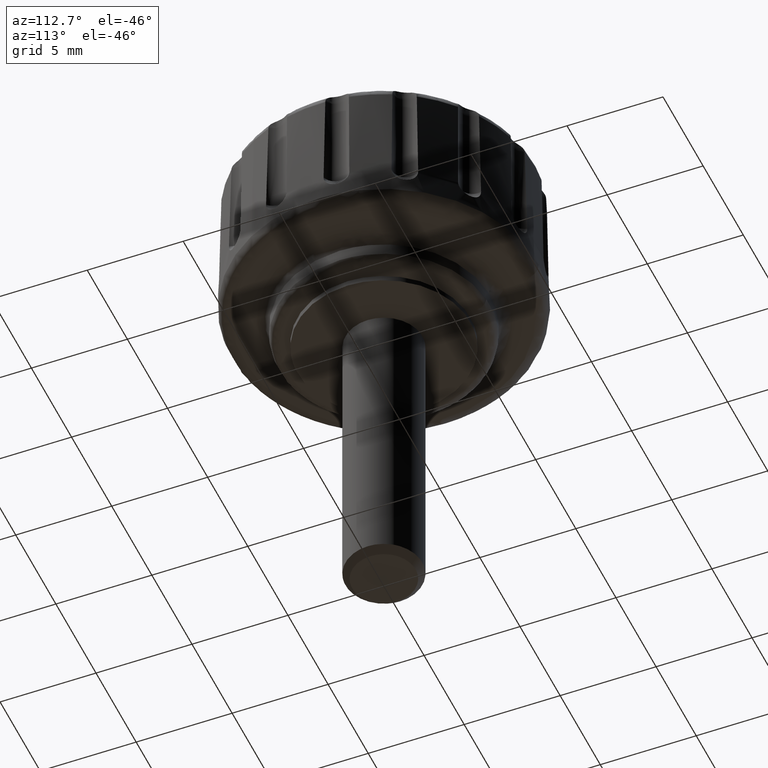
[diagram: clean part render]
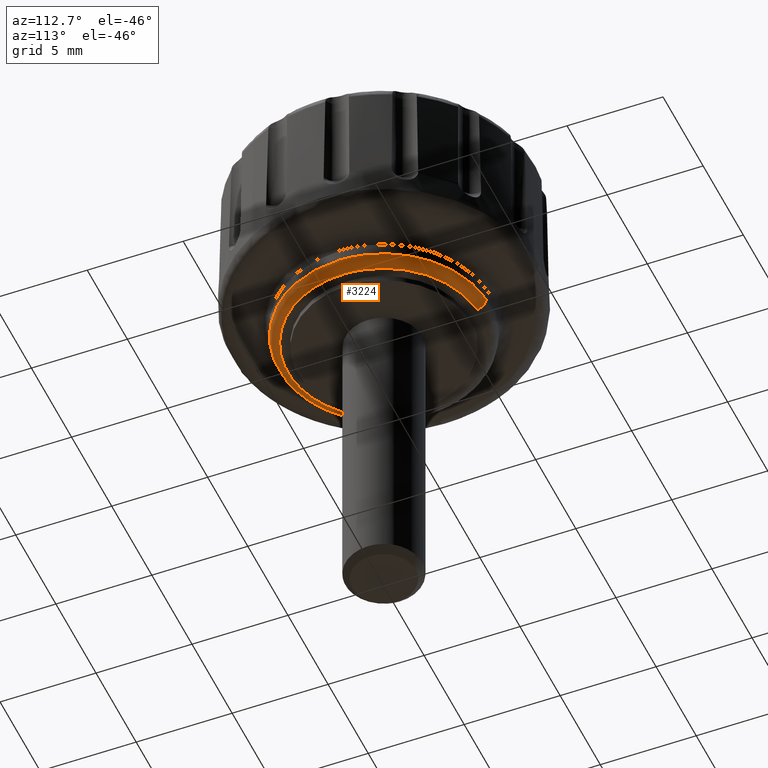
[diagram: same view with one face highlighted and labeled with its STEP entity id]
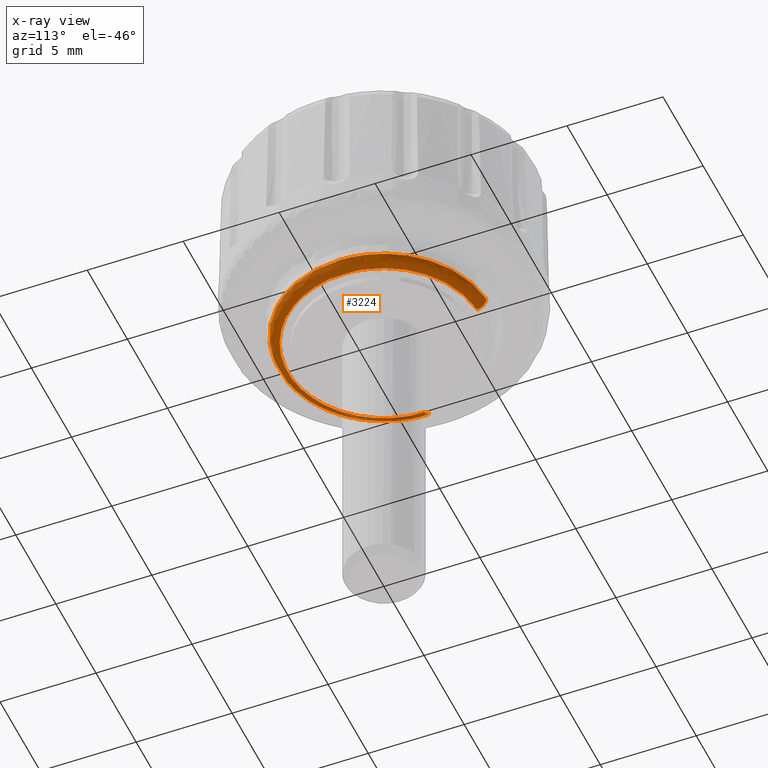
[diagram: x-ray of the same camera — body ghosted, the highlighted face saturated]
A machine part, auxiliary view. The second image highlights one B-rep face of the part: STEP entity #3224.
The next image is the same camera in x-ray: the body ghosted, the highlighted face saturated — about 6% of this face is hidden behind the body in this view.
In plain terms, the highlighted face is a freeform B-spline surface patch.
Its self-contained STEP definition (entity closure, byte-faithful):
#1249=CARTESIAN_POINT('',(5.512748662487790,0.0,0.786914525846069));
#1250=VERTEX_POINT('',#1249);
#1251=CARTESIAN_POINT('',(3.816212526649391,-3.978280977598345,0.786218860071127));
#1252=VERTEX_POINT('',#1251);
#1253=CARTESIAN_POINT('',(5.512748662487790,0.0,0.786914525846069));
#1254=CARTESIAN_POINT('',(5.512707262178933,-0.729892682607648,0.785333557025935));
#1255=CARTESIAN_POINT('',(5.367852507918578,-1.452144846739583,0.784982174044345));
#1256=CARTESIAN_POINT('',(5.086443105772388,-2.125608801014339,0.785973134721521));
#1257=CARTESIAN_POINT('',(4.805278012376520,-2.798488079952020,0.786963235084995));
#1258=CARTESIAN_POINT('',(4.393159064514106,-3.409306830098497,0.785042946046720));
#1259=CARTESIAN_POINT('',(3.873526041068701,-3.922493394250014,0.786110076637485));
#1260=CARTESIAN_POINT('',(3.854543832588056,-3.941240113397306,0.786149058946992));
#1261=CARTESIAN_POINT('',(3.835438718200484,-3.959836262499629,0.786185281745407));
#1262=CARTESIAN_POINT('',(3.816212526649391,-3.978280977598345,0.786218860071127));
#1263=B_SPLINE_CURVE_WITH_KNOTS('',3,(#1253,#1254,#1255,#1256,#1257,#1258,#1259,#1260,#1261,#1262),.UNSPECIFIED.,.F.,.U.,(4,3,3,4),(0.0,2.189683187976120,4.377465377765343,4.457385120666714),.UNSPECIFIED.);
#1264=EDGE_CURVE('',#1250,#1252,#1263,.T.);
#1266=CARTESIAN_POINT('',(0.384421889351672,5.499328834182221,0.786914524875779));
#1267=VERTEX_POINT('',#1266);
#1268=CARTESIAN_POINT('',(0.384421889351672,5.499328834182221,0.786914524875779));
#1269=CARTESIAN_POINT('',(5.512748662487790,5.140841257489637,0.786914525846069));
#1270=CARTESIAN_POINT('',(5.512748662487790,0.0,0.786914525846069));
#1278=(BOUNDED_CURVE()B_SPLINE_CURVE(2,(#1268,#1269,#1270),.UNSPECIFIED.,.F.,.U.)B_SPLINE_CURVE_WITH_KNOTS((3,3),(0.262166313464866,0.500000000000000),.UNSPECIFIED.)CURVE()GEOMETRIC_REPRESENTATION_ITEM()RATIONAL_B_SPLINE_CURVE((0.972879876387067,0.721360504033819,1.0))REPRESENTATION_ITEM(''));
#1279=EDGE_CURVE('',#1267,#1250,#1278,.T.);
#1281=CARTESIAN_POINT('',(-5.512530897101097,0.034636708100191,0.786909423287084));
#1282=VERTEX_POINT('',#1281);
#1298=CARTESIAN_POINT('',(0.432524292890312,-5.495728411869813,0.785299919006811));
#1299=VERTEX_POINT('',#1298);
#1300=CARTESIAN_POINT('',(0.432524292890312,-5.495728411869813,0.785299919006811));
#1301=CARTESIAN_POINT('',(0.266349345226151,-5.508797974674109,0.785551293820231));
#1302=CARTESIAN_POINT('',(0.098930063302916,-5.514384134886242,0.785911860181314));
#1303=CARTESIAN_POINT('',(-0.069274448613762,-5.512284669404438,0.786409522630960));
#1304=CARTESIAN_POINT('',(-0.790394292037416,-5.503187255428315,0.785190572832619));
#1305=CARTESIAN_POINT('',(-1.502270755429796,-5.352847493023234,0.785025354645656));
#1306=CARTESIAN_POINT('',(-2.165487838061620,-5.069582068425819,0.785965982479458));
#1307=CARTESIAN_POINT('',(-2.828114264446155,-4.786568917928486,0.786905772597042));
#1308=CARTESIAN_POINT('',(-3.429217347803218,-4.376174677536368,0.785087941187902));
#1309=CARTESIAN_POINT('',(-3.934631664119615,-3.861189418797352,0.786125775572364));
#1310=CARTESIAN_POINT('',(-4.951472893040219,-2.825092445548266,0.788213790804310));
#1311=CARTESIAN_POINT('',(-5.521591449833382,-1.426423361541701,0.782333793603524));
#1312=CARTESIAN_POINT('',(-5.512530897101097,0.034636708100191,0.786909423287084));
#1313=B_SPLINE_CURVE_WITH_KNOTS('',3,(#1300,#1301,#1302,#1303,#1304,#1305,#1306,#1307,#1308,#1309,#1310,#1311,#1312),.UNSPECIFIED.,.F.,.U.,(4,3,3,3,4),(8.278585819341332,8.779180984568928,10.925310396491410,13.069528481372039,17.383473065282271),.UNSPECIFIED.);
#1314=EDGE_CURVE('',#1299,#1282,#1313,.T.);
#1410=CARTESIAN_POINT('',(3.816212526649391,-3.978280977598345,0.786218860071127));
#1411=CARTESIAN_POINT('',(2.896952595399291,-4.860174506373521,0.787824357716738));
#1412=CARTESIAN_POINT('',(1.700990576878052,-5.395971147593342,0.783380977229926));
#1413=CARTESIAN_POINT('',(0.432524292890312,-5.495728411869813,0.785299919006811));
#1414=B_SPLINE_CURVE_WITH_KNOTS('',3,(#1410,#1411,#1412,#1413),.UNSPECIFIED.,.F.,.U.,(4,4),(4.457385120666713,8.278585819341332),.UNSPECIFIED.);
#1415=EDGE_CURVE('',#1252,#1299,#1414,.T.);
#3043=CARTESIAN_POINT('',(0.384402288679992,5.499048437716990,0.821268313604704));
#3044=CARTESIAN_POINT('',(5.577447597019020,5.136036814096306,0.821268313604704));
#3045=CARTESIAN_POINT('',(5.512032340488168,-0.069269887488022,0.821268313604704));
#3046=CARTESIAN_POINT('',(5.442762453000143,-5.581302227976187,0.821268313604704));
#3047=CARTESIAN_POINT('',(-0.069269887488022,-5.512032340488168,0.821268313604704));
#3048=CARTESIAN_POINT('',(-5.581302227976186,-5.442762453000144,0.821268313604704));
#3049=CARTESIAN_POINT('',(-5.512032340488168,0.069269887488021,0.821268313604704));
#3050=CARTESIAN_POINT('',(0.386060046720480,5.522763415569910,0.262815741003018));
#3051=CARTESIAN_POINT('',(5.601500675972084,5.158186282441171,0.262815741003018));
#3052=CARTESIAN_POINT('',(5.535803312204419,-0.069568618053184,0.262815741003018));
#3053=CARTESIAN_POINT('',(5.466234694151230,-5.605371930257599,0.262815741003018));
#3054=CARTESIAN_POINT('',(-0.069568618053184,-5.535803312204419,0.262815741003018));
#3055=CARTESIAN_POINT('',(-5.605371930257599,-5.466234694151230,0.262815741003018));
#3056=CARTESIAN_POINT('',(-5.535803312204419,0.069568618053184,0.262815741003018));
#3057=CARTESIAN_POINT('',(0.347173992104613,4.966480833021669,0.301182227571342));
#3058=CARTESIAN_POINT('',(5.037287250969899,4.638625879333592,0.301182227571342));
#3059=CARTESIAN_POINT('',(4.978207280784631,-0.062561290814463,0.301182227571342));
#3060=CARTESIAN_POINT('',(4.915645989970166,-5.040768571599091,0.301182227571342));
#3061=CARTESIAN_POINT('',(-0.062561290814462,-4.978207280784631,0.301182227571342));
#3062=CARTESIAN_POINT('',(-5.040768571599091,-4.915645989970166,0.301182227571342));
#3063=CARTESIAN_POINT('',(-4.978207280784631,0.062561290814462,0.301182227571342));
#3071=(BOUNDED_SURFACE()B_SPLINE_SURFACE(2,2,((#3043,#3050,#3057),(#3044,#3051,#3058),(#3045,#3052,#3059),(#3046,#3053,#3060),(#3047,#3054,#3061),(#3048,#3055,#3062),(#3049,#3056,#3063)),.UNSPECIFIED.,.F.,.F.,.U.)B_SPLINE_SURFACE_WITH_KNOTS((3,2,2,3),(3,3),(0.0,8.768021124499002,17.901376462518801,27.034731800538591),(0.0,0.894364607943259),.UNSPECIFIED.)GEOMETRIC_REPRESENTATION_ITEM()RATIONAL_B_SPLINE_SURFACE(((0.895549162225522,0.597203372067661,0.895956564990822),(0.658554553887211,0.439161820323288,0.658854143186907),(0.916157389037550,0.610946115697606,0.916574166886815),(0.647821102422613,0.432004141349359,0.648115808866077),(0.916157389037550,0.610946115697606,0.916574166886815),(0.647821102422613,0.432004141349359,0.648115808866077),(0.916157389037550,0.610946115697606,0.916574166886815)))REPRESENTATION_ITEM('')SURFACE());
#3072=CARTESIAN_POINT('',(0.349567217099414,5.000716997999804,0.300003000000015));
#3073=VERTEX_POINT('',#3072);
#3074=CARTESIAN_POINT('',(5.012919999999999,0.0,0.300003000000004));
#3075=VERTEX_POINT('',#3074);
#3076=CARTESIAN_POINT('',(0.349567217099414,5.000716997999804,0.300003000000015));
#3077=CARTESIAN_POINT('',(5.012919999999999,4.674732612401294,0.300003000000004));
#3078=CARTESIAN_POINT('',(5.012919999999999,0.0,0.300003000000004));
#3086=(BOUNDED_CURVE()B_SPLINE_CURVE(2,(#3076,#3077,#3078),.UNSPECIFIED.,.F.,.U.)B_SPLINE_CURVE_WITH_KNOTS((3,3),(0.262166313464810,0.500000000000000),.UNSPECIFIED.)CURVE()GEOMETRIC_REPRESENTATION_ITEM()RATIONAL_B_SPLINE_CURVE((0.972879876387184,0.721360504033754,1.0))REPRESENTATION_ITEM(''));
#3087=EDGE_CURVE('',#3073,#3075,#3086,.T.);
#3088=ORIENTED_EDGE('',*,*,#3087,.F.);
#3089=CARTESIAN_POINT('',(0.384421889351671,5.499328834182215,0.786914524875778));
#3090=CARTESIAN_POINT('',(0.383532774641746,5.486609646496433,0.300003078407448));
#3091=CARTESIAN_POINT('',(0.349567217099414,5.000716997999804,0.300003000000015));
#3099=(BOUNDED_CURVE()B_SPLINE_CURVE(2,(#3089,#3090,#3091),.UNSPECIFIED.,.F.,.U.)B_SPLINE_CURVE_WITH_KNOTS((3,3),(-1.730267222669182,-0.268636184484267),.UNSPECIFIED.)CURVE()GEOMETRIC_REPRESENTATION_ITEM()RATIONAL_B_SPLINE_CURVE((0.869682888467702,0.623088199854952,0.870053183016240))REPRESENTATION_ITEM(''));
#3100=EDGE_CURVE('',#1267,#3073,#3099,.T.);
#3101=ORIENTED_EDGE('',*,*,#3100,.F.);
#3102=ORIENTED_EDGE('',*,*,#1279,.T.);
#3103=ORIENTED_EDGE('',*,*,#1264,.T.);
#3104=ORIENTED_EDGE('',*,*,#1415,.T.);
#3105=ORIENTED_EDGE('',*,*,#1314,.T.);
#3106=CARTESIAN_POINT('',(-5.012917982175576,0.031498737977902,0.300003076751430));
#3107=VERTEX_POINT('',#3106);
#3108=CARTESIAN_POINT('',(-5.512530897101097,0.034636708100191,0.786909423287084));
#3109=CARTESIAN_POINT('',(-5.499860380398856,0.036047818024192,0.300003937687814));
#3110=CARTESIAN_POINT('',(-5.012917982175576,0.031498737977902,0.300003076751430));
#3118=(BOUNDED_CURVE()B_SPLINE_CURVE(2,(#3108,#3109,#3110),.UNSPECIFIED.,.F.,.U.)B_SPLINE_CURVE_WITH_KNOTS((3,3),(-1.730244594685059,-0.268631820707516),.UNSPECIFIED.)CURVE()GEOMETRIC_REPRESENTATION_ITEM()RATIONAL_B_SPLINE_CURVE((0.889688074131002,0.637429758978865,0.890076209232669))REPRESENTATION_ITEM(''));
#3119=EDGE_CURVE('',#1282,#3107,#3118,.T.);
#3120=ORIENTED_EDGE('',*,*,#3119,.T.);
#3121=CARTESIAN_POINT('',(5.012919999999999,0.0,0.300003000000004));
#3122=CARTESIAN_POINT('',(5.013617490653953,-0.025680701277561,0.300003763328562));
#3123=CARTESIAN_POINT('',(5.013982538491242,-0.066787300128549,0.300004599614071));
#3124=CARTESIAN_POINT('',(5.012937151432968,-0.113020862966680,0.300004791815099));
#3125=CARTESIAN_POINT('',(5.011636614931664,-0.138677768877814,0.300004530085832));
#3126=CARTESIAN_POINT('',(5.010685681486342,-0.159207224024095,0.300004341515208));
#3127=CARTESIAN_POINT('',(5.008375028150438,-0.205389326826730,0.300004024350877));
#3128=CARTESIAN_POINT('',(5.006574496250987,-0.267023354169290,0.300003511538330));
#3129=CARTESIAN_POINT('',(5.000813349558826,-0.369620945300961,0.300003504213587));
#3130=CARTESIAN_POINT('',(4.994157694594796,-0.451567882555042,0.300004653632173));
#3131=CARTESIAN_POINT('',(4.981688172565564,-0.574251794247169,0.300004690352413));
#3132=CARTESIAN_POINT('',(4.962918269065151,-0.716871460533322,0.300002415826369));
#3133=CARTESIAN_POINT('',(4.931256712753975,-0.920013416869679,0.300005838307412));
#3134=CARTESIAN_POINT('',(4.885408644275613,-1.130915306825727,0.300002338236404));
#3135=CARTESIAN_POINT('',(4.833915454080420,-1.340527207922075,0.300005845073700));
#3136=CARTESIAN_POINT('',(4.773082399417536,-1.536893125747454,0.300002394529178));
#3137=CARTESIAN_POINT('',(4.707652049074500,-1.731743092528246,0.300005701448311));
#3138=CARTESIAN_POINT('',(4.654313793282897,-1.865409311080458,0.300003478607594));
#3139=CARTESIAN_POINT('',(4.598794190925545,-1.998107150402763,0.300003564209910));
#3140=CARTESIAN_POINT('',(4.541337794830466,-2.130050764073357,0.300005690243248));
#3141=CARTESIAN_POINT('',(4.448939888962830,-2.313666967769083,0.300002325535070));
#3142=CARTESIAN_POINT('',(4.356558428991406,-2.485701104132925,0.300005560207515));
#3143=CARTESIAN_POINT('',(4.282027520066170,-2.608799943000717,0.300003699632541));
#3144=CARTESIAN_POINT('',(4.210960879845541,-2.721895452264076,0.300003288160670));
#3145=CARTESIAN_POINT('',(4.126945897512272,-2.851170051937782,0.300005687217648));
#3146=CARTESIAN_POINT('',(4.041957391186814,-2.967305613849078,0.300003465310242));
#3147=CARTESIAN_POINT('',(3.955106784885470,-3.081968447121187,0.300003575879439));
#3148=CARTESIAN_POINT('',(3.866550508496267,-3.195412471085235,0.300005692215693));
#3149=CARTESIAN_POINT('',(3.731279381740668,-3.350177350220329,0.300002328068380));
#3150=CARTESIAN_POINT('',(3.591931410329697,-3.501287318019899,0.300005714134143));
#3151=CARTESIAN_POINT('',(3.488622072912629,-3.601476448872945,0.300003519530257));
#3152=CARTESIAN_POINT('',(3.383983119642548,-3.700172035223424,0.300003523341198));
#3153=CARTESIAN_POINT('',(3.277604791778995,-3.797120702979430,0.300005681527702));
#3154=CARTESIAN_POINT('',(3.118271068543141,-3.926943169684796,0.300002423571823));
#3155=CARTESIAN_POINT('',(2.955858467844539,-4.052977699947286,0.300005838957449));
#3156=CARTESIAN_POINT('',(2.777772515154152,-4.174940210288208,0.300002330693514));
#3157=CARTESIAN_POINT('',(2.605149312248806,-4.286525035687228,0.300005737510181));
#3158=CARTESIAN_POINT('',(2.426508664868843,-4.388252020345203,0.300002463195532));
#3159=CARTESIAN_POINT('',(2.290748154819639,-4.461248066410406,0.300004839141711));
#3160=CARTESIAN_POINT('',(2.161613127744269,-4.524694613861596,0.300004465839412));
#3161=CARTESIAN_POINT('',(2.030862707246137,-4.584661312758476,0.300002608237818));
#3162=CARTESIAN_POINT('',(1.851571886432887,-4.662128948392908,0.300005846196782));
#3163=CARTESIAN_POINT('',(1.658342990247351,-4.732290912179402,0.300002460321791));
#3164=CARTESIAN_POINT('',(1.521972046704551,-4.778089816321577,0.300004602413475));
#3165=CARTESIAN_POINT('',(1.384329089375584,-4.819966613611316,0.300004687046989));
#3166=CARTESIAN_POINT('',(1.245393040244100,-4.857333342694968,0.300002463511182));
#3167=CARTESIAN_POINT('',(1.045648385680664,-4.905903664287563,0.300005765758816));
#3168=CARTESIAN_POINT('',(0.843501387010679,-4.943134017058936,0.300002331132413));
#3169=CARTESIAN_POINT('',(0.630256560756393,-4.976591989854459,0.300005790821201));
#3170=CARTESIAN_POINT('',(0.415409776681867,-4.997317813770295,0.300002387513706));
#3171=CARTESIAN_POINT('',(0.220615995821414,-5.011002838578372,0.300005232656362));
#3172=CARTESIAN_POINT('',(0.076722064959110,-5.012903795026133,0.300003182834924));
#3173=CARTESIAN_POINT('',(-0.056841889582900,-5.013001457305838,0.300002801828091));
#3174=CARTESIAN_POINT('',(-0.211032438806521,-5.011544859938651,0.300005036642662));
#3175=CARTESIAN_POINT('',(-0.416093322961546,-4.997285465143505,0.300002459533170));
#3176=CARTESIAN_POINT('',(-0.630927791887125,-4.976495562046906,0.300005754695659));
#3177=CARTESIAN_POINT('',(-0.823874006732779,-4.946194498210988,0.300002647635470));
#3178=CARTESIAN_POINT('',(-0.965443887549826,-4.920702040834968,0.300004453335327));
#3179=CARTESIAN_POINT('',(-1.106319661368932,-4.891456615975110,0.300004845044601));
#3180=CARTESIAN_POINT('',(-1.255988946047916,-4.854602073261540,0.300002457184078));
#3181=CARTESIAN_POINT('',(-1.454351141107218,-4.800623475683763,0.300005742042675));
#3182=CARTESIAN_POINT('',(-1.649339417010999,-4.735590270471694,0.300002328668440));
#3183=CARTESIAN_POINT('',(-1.852206572674181,-4.661872460240617,0.300005838310981));
#3184=CARTESIAN_POINT('',(-2.040918498590394,-4.580311522793515,0.300002444492468));
#3185=CARTESIAN_POINT('',(-2.171553802525345,-4.520078066013369,0.300004644397669));
#3186=CARTESIAN_POINT('',(-2.300398616575235,-4.456050838542547,0.300004643426849));
#3187=CARTESIAN_POINT('',(-2.427108696600228,-4.387933438685166,0.300002486238622));
#3188=CARTESIAN_POINT('',(-2.605731452564077,-4.286167833015382,0.300005731760976));
#3189=CARTESIAN_POINT('',(-2.778338703926061,-4.174562466417623,0.300002329409904));
#3190=CARTESIAN_POINT('',(-2.947931025808793,-4.058395728331068,0.300005690728853));
#3191=CARTESIAN_POINT('',(-3.061965510140936,-3.970615116690869,0.300003579839799));
#3192=CARTESIAN_POINT('',(-3.174655518023547,-3.881218574459419,0.300003460266943));
#3193=CARTESIAN_POINT('',(-3.285925077838176,-3.789941049976090,0.300005708159042));
#3194=CARTESIAN_POINT('',(-3.437313816448561,-3.650919928236438,0.300002391672079));
#3195=CARTESIAN_POINT('',(-3.585425731956689,-3.508344365207908,0.300005846518341));
#3196=CARTESIAN_POINT('',(-3.731733816944594,-3.349677807453755,0.300002337126150));
#3197=CARTESIAN_POINT('',(-3.873747252883139,-3.187131081526154,0.300005838055645));
#3198=CARTESIAN_POINT('',(-3.999567905270303,-3.024550857692074,0.300002414137928));
#3199=CARTESIAN_POINT('',(-4.121475141522122,-2.859084948965126,0.300005702830382));
#3200=CARTESIAN_POINT('',(-4.200276340727601,-2.738642512803571,0.300003497095806));
#3201=CARTESIAN_POINT('',(-4.276994062064577,-2.616970053742843,0.300003538335639));
#3202=CARTESIAN_POINT('',(-4.352025429407729,-2.494164592612075,0.300005713595216));
#3203=CARTESIAN_POINT('',(-4.449259804620399,-2.313063193906767,0.300002336343318));
#3204=CARTESIAN_POINT('',(-4.546238905239138,-2.120243706443842,0.300005838246738));
#3205=CARTESIAN_POINT('',(-4.627540094858479,-1.931411940565230,0.300002419677696));
#3206=CARTESIAN_POINT('',(-4.681265816534897,-1.797971378884542,0.300004684236021));
#3207=CARTESIAN_POINT('',(-4.727500760224365,-1.672625367858870,0.300004682104825));
#3208=CARTESIAN_POINT('',(-4.773300482536619,-1.536257844418392,0.300002421081244));
#3209=CARTESIAN_POINT('',(-4.834095055801665,-1.339869099461742,0.300005838426091));
#3210=CARTESIAN_POINT('',(-4.885563307716256,-1.130249620779066,0.300002339998916));
#3211=CARTESIAN_POINT('',(-4.931382154088850,-0.919345264022626,0.300005839994831));
#3212=CARTESIAN_POINT('',(-4.963012121675193,-0.716194817059686,0.300002407441003));
#3213=CARTESIAN_POINT('',(-4.981770890866120,-0.573576261117462,0.300004701459589));
#3214=CARTESIAN_POINT('',(-4.996295995239688,-0.430438343834491,0.300004635707343));
#3215=CARTESIAN_POINT('',(-5.005402971255576,-0.297142867322706,0.300002444619338));
#3216=CARTESIAN_POINT('',(-5.014109034761745,-0.122670660143337,0.300005584608609));
#3217=CARTESIAN_POINT('',(-5.013949856716907,-0.019860546768591,0.300004022331860));
#3218=CARTESIAN_POINT('',(-5.012917982175576,0.031498737977902,0.300003076751430));
#3219=B_SPLINE_CURVE_WITH_KNOTS('',3,(#3121,#3122,#3123,#3124,#3125,#3126,#3127,#3128,#3129,#3130,#3131,#3132,#3133,#3134,#3135,#3136,#3137,#3138,#3139,#3140,#3141,#3142,#3143,#3144,#3145,#3146,#3147,#3148,#3149,#3150,#3151,#3152,#3153,#3154,#3155,#3156,#3157,#3158,#3159,#3160,#3161,#3162,#3163,#3164,#3165,#3166,#3167,#3168,#3169,#3170,#3171,#3172,#3173,#3174,#3175,#3176,#3177,#3178,#3179,#3180,#3181,#3182,#3183,#3184,#3185,#3186,#3187,#3188,#3189,#3190,#3191,#3192,#3193,#3194,#3195,#3196,#3197,#3198,#3199,#3200,#3201,#3202,#3203,#3204,#3205,#3206,#3207,#3208,#3209,#3210,#3211,#3212,#3213,#3214,#3215,#3216,#3217,#3218),.UNSPECIFIED.,.F.,.U.,(4,1,1,1,1,1,1,1,1,1,1,1,1,1,1,1,1,1,1,1,1,1,1,1,1,1,1,1,1,1,1,1,1,1,1,1,1,1,1,1,1,1,1,1,1,1,1,1,1,1,1,1,1,1,1,1,1,1,1,1,1,1,1,1,1,1,1,1,1,1,1,1,1,1,1,1,1,1,1,1,1,1,1,1,1,1,1,1,1,1,1,1,1,1,1,4),(-0.000040084229960,0.077028728453056,0.123266833312021,0.138680604326508,0.154094375340961,0.184921917369881,0.277401045255198,0.339054263604913,0.493190127482199,0.524014235935367,0.708976812843146,0.924763685682484,1.140550475936252,1.356337264027779,1.572124139073463,1.757086715235340,1.972873978463133,2.003698725062675,2.188660816294309,2.404447554696738,2.620234402371285,2.774369394270348,2.836021313357207,3.020983915073888,3.236771135308207,3.267595981387105,3.452557939315669,3.668344643329908,3.884131548258255,4.069093951167742,4.099918496180665,4.315705879171372,4.500668283259085,4.716455054723793,4.932241741707234,5.148028701659753,5.332991177294213,5.548778292927667,5.610430135111036,5.764565422191406,5.980352162492048,6.196138849694959,6.381100892623310,6.411925862528930,6.627712886902568,6.812675470912046,7.028462552187101,7.244249262821802,7.460035921626782,7.675823122582079,7.829958172442572,7.891610097421656,8.076572509741617,8.292359671862542,8.508146334578628,8.723933064244003,8.878068324464223,8.939720176795042,9.155507277973445,9.340469775969146,9.556256755085110,9.772043440169183,9.987830200309594,10.172792574101029,10.203617359524319,10.419404501323671,10.604366932033980,10.820153856919170,11.035940552844840,11.220902459411789,11.251727345045619,11.467514549490931,11.652477156511861,11.868264080616180,12.084050949057479,12.299837673142990,12.515624498719930,12.700587015247759,12.916374333868159,12.947198971164980,13.132161221664649,13.347948031368601,13.563734801039249,13.779521661211140,13.964484225051359,13.995308951217140,14.180271502608051,14.396058355153230,14.611845107843260,14.827631936512020,15.043418832401761,15.228381427633760,15.259206162915641,15.474993297293990,15.629128393792911,15.783261915168721),.UNSPECIFIED.);
#3220=EDGE_CURVE('',#3075,#3107,#3219,.T.);
#3221=ORIENTED_EDGE('',*,*,#3220,.F.);
#3222=EDGE_LOOP('',(#3088,#3101,#3102,#3103,#3104,#3105,#3120,#3221));
#3223=FACE_OUTER_BOUND('',#3222,.T.);
#3224=ADVANCED_FACE('',(#3223),#3071,.T.);